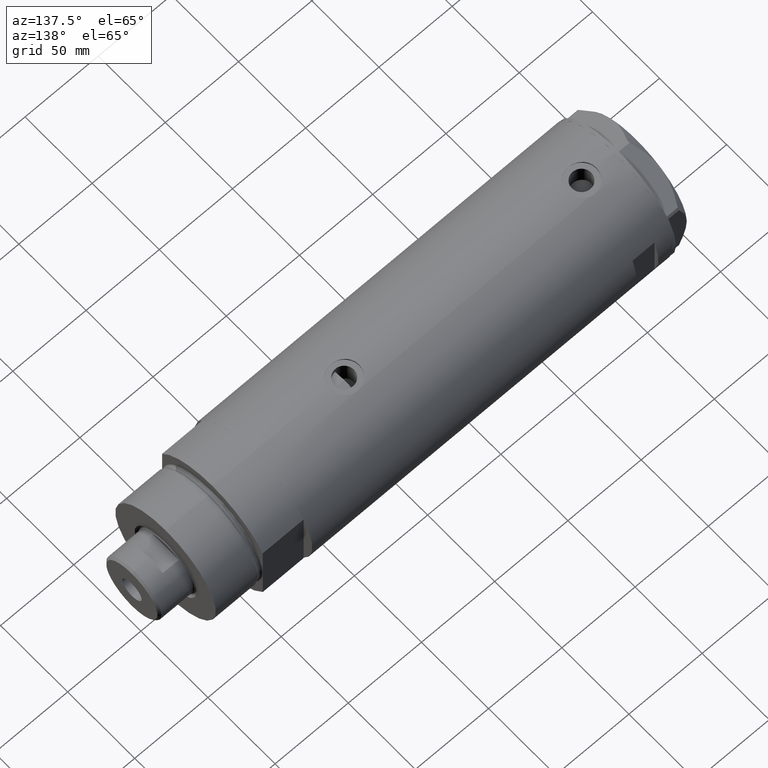
[diagram: clean part render]
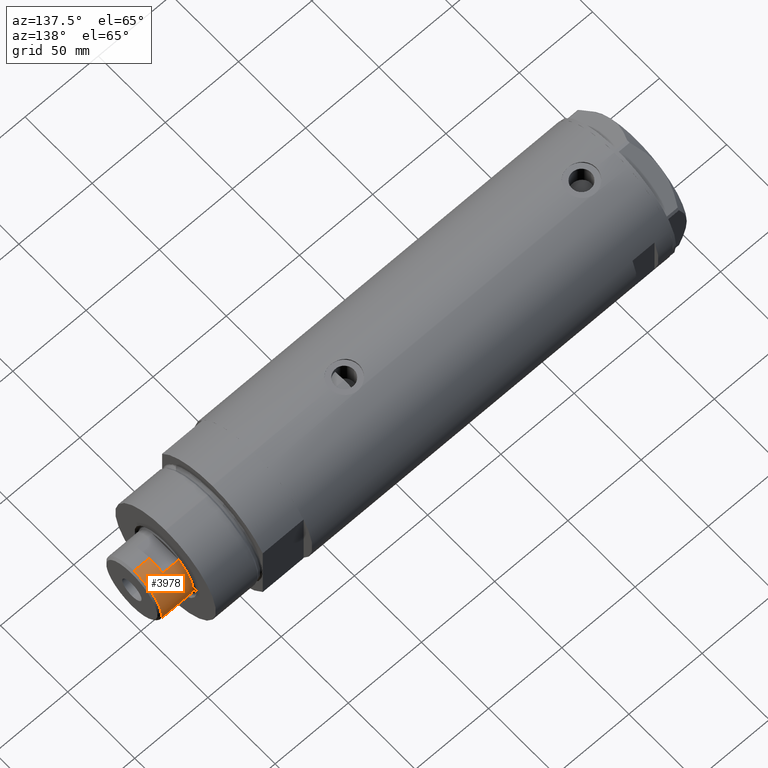
[diagram: same view with one face highlighted and labeled with its STEP entity id]
A machine part, auxiliary view. The second image highlights one B-rep face of the part: STEP entity #3978.
In plain terms, the highlighted cylindrical surface (partial cylindrical patch) has radius 20.5 mm, axis along (-1, -0, 0).
Its self-contained STEP definition (entity closure, byte-faithful):
#6 = EDGE_CURVE ( 'NONE', #3136, #3964, #3790, .T. ) ;
#35 = LINE ( 'NONE', #2434, #431 ) ;
#118 = AXIS2_PLACEMENT_3D ( 'NONE', #2591, #1505, #533 ) ;
#215 = DIRECTION ( 'NONE',  ( -0.000000000000000000, -0.000000000000000000, -1.000000000000000000 ) ) ;
#283 = ORIENTED_EDGE ( 'NONE', *, *, #440, .F. ) ;
#308 = CARTESIAN_POINT ( 'NONE',  ( 0.000000000000000000, 0.000000000000000000, 280.3000000000000114 ) ) ;
#335 = DIRECTION ( 'NONE',  ( 0.000000000000000000, 0.000000000000000000, -1.000000000000000000 ) ) ;
#349 = AXIS2_PLACEMENT_3D ( 'NONE', #692, #335, #2508 ) ;
#431 = VECTOR ( 'NONE', #1427, 1000.000000000000000 ) ;
#440 = EDGE_CURVE ( 'NONE', #763, #3964, #2663, .T. ) ;
#444 = ORIENTED_EDGE ( 'NONE', *, *, #3710, .T. ) ;
#493 = VECTOR ( 'NONE', #4070, 1000.000000000000000 ) ;
#533 = DIRECTION ( 'NONE',  ( 1.000000000000000000, 0.000000000000000000, 0.000000000000000000 ) ) ;
#620 = CARTESIAN_POINT ( 'NONE',  ( 17.97852886083842705, 9.849999999999997868, 280.3000000000000114 ) ) ;
#692 = CARTESIAN_POINT ( 'NONE',  ( 0.000000000000000000, 0.000000000000000000, 301.8999999999999773 ) ) ;
#734 = VERTEX_POINT ( 'NONE', #3215 ) ;
#763 = VERTEX_POINT ( 'NONE', #3897 ) ;
#794 = ORIENTED_EDGE ( 'NONE', *, *, #1588, .T. ) ;
#802 = AXIS2_PLACEMENT_3D ( 'NONE', #2849, #1069, #3861 ) ;
#866 = CIRCLE ( 'NONE', #349, 20.50000000000000355 ) ;
#870 = EDGE_CURVE ( 'NONE', #1118, #3136, #1561, .T. ) ;
#874 = VERTEX_POINT ( 'NONE', #1891 ) ;
#1011 = CARTESIAN_POINT ( 'NONE',  ( 20.50000000000000355, 2.510525938252074481E-15, 291.3000000000000114 ) ) ;
#1069 = DIRECTION ( 'NONE',  ( -0.000000000000000000, -0.000000000000000000, -1.000000000000000000 ) ) ;
#1118 = VERTEX_POINT ( 'NONE', #1432 ) ;
#1367 = VERTEX_POINT ( 'NONE', #1861 ) ;
#1427 = DIRECTION ( 'NONE',  ( -0.000000000000000000, -0.000000000000000000, -1.000000000000000000 ) ) ;
#1432 = CARTESIAN_POINT ( 'NONE',  ( 17.97852886083842705, 9.849999999999997868, 291.3000000000000114 ) ) ;
#1505 = DIRECTION ( 'NONE',  ( 0.000000000000000000, 0.000000000000000000, 1.000000000000000000 ) ) ;
#1561 = LINE ( 'NONE', #2285, #2534 ) ;
#1588 = EDGE_CURVE ( 'NONE', #874, #1367, #3852, .T. ) ;
#1711 = DIRECTION ( 'NONE',  ( 0.000000000000000000, 0.000000000000000000, 1.000000000000000000 ) ) ;
#1813 = CIRCLE ( 'NONE', #118, 20.50000000000000000 ) ;
#1861 = CARTESIAN_POINT ( 'NONE',  ( 20.50000000000000000, 2.510525938252074481E-15, 291.3000000000000114 ) ) ;
#1891 = CARTESIAN_POINT ( 'NONE',  ( 20.50000000000000355, 2.510525938252074481E-15, 301.8999999999999773 ) ) ;
#2186 = EDGE_CURVE ( 'NONE', #1367, #1118, #1813, .T. ) ;
#2285 = CARTESIAN_POINT ( 'NONE',  ( 17.97852886083842705, 9.849999999999997868, 291.3000000000000114 ) ) ;
#2295 = ORIENTED_EDGE ( 'NONE', *, *, #2568, .T. ) ;
#2404 = CARTESIAN_POINT ( 'NONE',  ( 0.000000000000000000, 0.000000000000000000, 291.3000000000000114 ) ) ;
#2423 = CARTESIAN_POINT ( 'NONE',  ( -20.50000000000000355, 0.000000000000000000, 301.8999999999999773 ) ) ;
#2434 = CARTESIAN_POINT ( 'NONE',  ( -20.50000000000000355, 0.000000000000000000, 291.3000000000000114 ) ) ;
#2508 = DIRECTION ( 'NONE',  ( 1.000000000000000000, 0.000000000000000000, 0.000000000000000000 ) ) ;
#2534 = VECTOR ( 'NONE', #215, 1000.000000000000000 ) ;
#2568 = EDGE_CURVE ( 'NONE', #3901, #874, #866, .T. ) ;
#2591 = CARTESIAN_POINT ( 'NONE',  ( 0.000000000000000000, 0.000000000000000000, 291.3000000000000114 ) ) ;
#2663 = LINE ( 'NONE', #3987, #493 ) ;
#2760 = DIRECTION ( 'NONE',  ( 1.000000000000000000, 0.000000000000000000, 0.000000000000000000 ) ) ;
#2849 = CARTESIAN_POINT ( 'NONE',  ( 0.000000000000000000, 0.000000000000000000, 291.3000000000000114 ) ) ;
#2850 = CIRCLE ( 'NONE', #4462, 20.50000000000000000 ) ;
#2988 = VECTOR ( 'NONE', #4158, 1000.000000000000000 ) ;
#3136 = VERTEX_POINT ( 'NONE', #620 ) ;
#3215 = CARTESIAN_POINT ( 'NONE',  ( -20.50000000000000000, 0.000000000000000000, 291.3000000000000114 ) ) ;
#3413 = AXIS2_PLACEMENT_3D ( 'NONE', #308, #1711, #2760 ) ;
#3486 = CARTESIAN_POINT ( 'NONE',  ( -17.97852886083843060, 9.850000000000024514, 280.3000000000000114 ) ) ;
#3561 = ORIENTED_EDGE ( 'NONE', *, *, #2186, .T. ) ;
#3589 = ORIENTED_EDGE ( 'NONE', *, *, #870, .T. ) ;
#3710 = EDGE_CURVE ( 'NONE', #763, #734, #2850, .T. ) ;
#3790 = CIRCLE ( 'NONE', #3413, 20.50000000000001776 ) ;
#3852 = LINE ( 'NONE', #1011, #2988 ) ;
#3861 = DIRECTION ( 'NONE',  ( -1.000000000000000000, 0.000000000000000000, 0.000000000000000000 ) ) ;
#3897 = CARTESIAN_POINT ( 'NONE',  ( -17.97852886083842705, 9.849999999999997868, 291.3000000000000114 ) ) ;
#3901 = VERTEX_POINT ( 'NONE', #2423 ) ;
#3911 = FACE_OUTER_BOUND ( 'NONE', #4234, .T. ) ;
#3937 = DIRECTION ( 'NONE',  ( 0.000000000000000000, 0.000000000000000000, 1.000000000000000000 ) ) ;
#3964 = VERTEX_POINT ( 'NONE', #3486 ) ;
#3978 = ADVANCED_FACE ( 'NONE', ( #3911 ), #4265, .T. ) ;
#3987 = CARTESIAN_POINT ( 'NONE',  ( -17.97852886083842705, 9.849999999999997868, 291.3000000000000114 ) ) ;
#4070 = DIRECTION ( 'NONE',  ( -0.000000000000000000, -0.000000000000000000, -1.000000000000000000 ) ) ;
#4158 = DIRECTION ( 'NONE',  ( -0.000000000000000000, -0.000000000000000000, -1.000000000000000000 ) ) ;
#4212 = EDGE_CURVE ( 'NONE', #3901, #734, #35, .T. ) ;
#4234 = EDGE_LOOP ( 'NONE', ( #2295, #794, #3561, #3589, #4428, #283, #444, #4403 ) ) ;
#4265 = CYLINDRICAL_SURFACE ( 'NONE', #802, 20.50000000000000355 ) ;
#4313 = DIRECTION ( 'NONE',  ( 1.000000000000000000, 0.000000000000000000, 0.000000000000000000 ) ) ;
#4403 = ORIENTED_EDGE ( 'NONE', *, *, #4212, .F. ) ;
#4428 = ORIENTED_EDGE ( 'NONE', *, *, #6, .T. ) ;
#4462 = AXIS2_PLACEMENT_3D ( 'NONE', #2404, #3937, #4313 ) ;